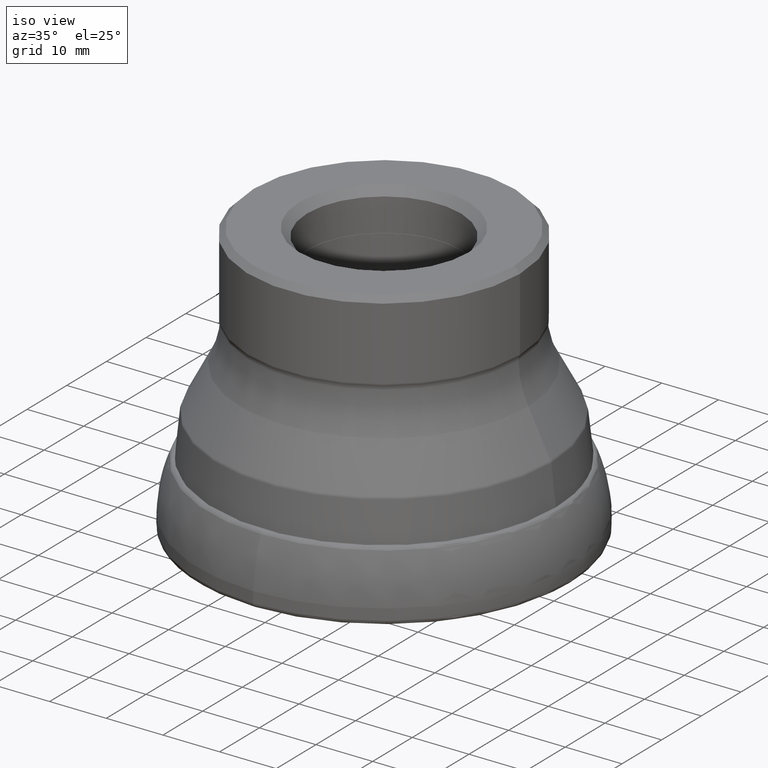
[diagram: clean part render]
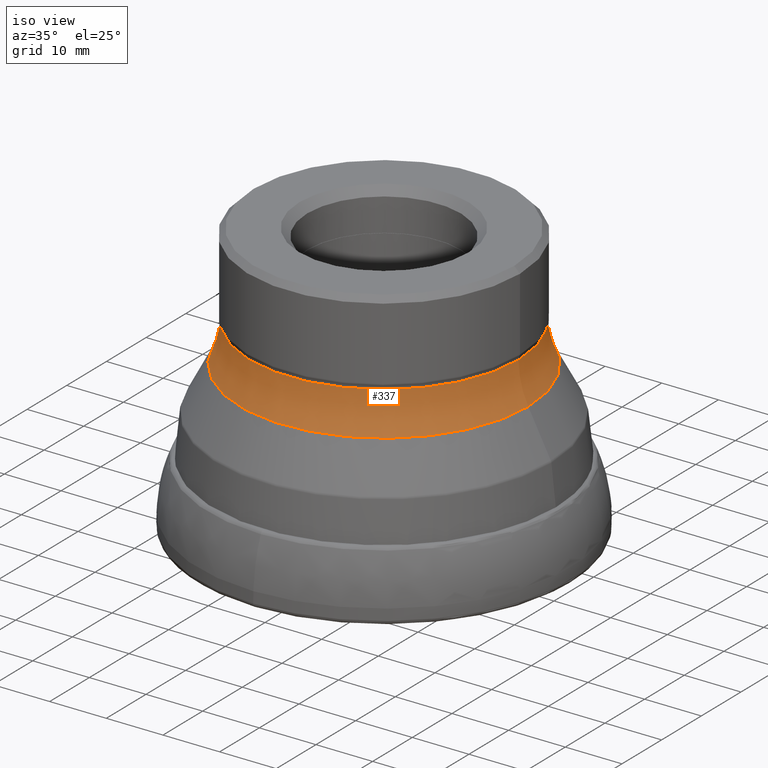
[diagram: same view with one face highlighted and labeled with its STEP entity id]
A machine part, iso view. The second image highlights one B-rep face of the part: STEP entity #337.
In plain terms, the highlighted toroidal blend (fillet) surface has major radius 38.75 mm and minor (blend) radius 15 mm.
Its self-contained STEP definition (entity closure, byte-faithful):
#286 = DIRECTION ( 'NONE',  ( -0.0000000000000000000, -0.0000000000000000000, 1.000000000000000000 ) ) ;
#320 = CARTESIAN_POINT ( 'NONE',  ( 0.0000000000000000000, 0.0000000000000000000, -35.20001158925848700 ) ) ;
#337 = ADVANCED_FACE ( 'NONE', ( #2296, #2919 ), #1118, .F. ) ;
#788 = DIRECTION ( 'NONE',  ( 1.000000000000000000, 0.0000000000000000000, 0.0000000000000000000 ) ) ;
#789 = DIRECTION ( 'NONE',  ( 1.000000000000000000, 0.0000000000000000000, 0.0000000000000000000 ) ) ;
#1118 = TOROIDAL_SURFACE ( 'NONE', #1983, 38.74999999998566800, 14.99999999999311300 ) ;
#1120 = EDGE_LOOP ( 'NONE', ( #2228 ) ) ;
#1313 = EDGE_CURVE ( 'NONE', #2319, #2319, #1425, .T. ) ;
#1425 = CIRCLE ( 'NONE', #2498, 25.47065199734587900 ) ;
#1528 = CARTESIAN_POINT ( 'NONE',  ( 25.47065199734587900, 0.0000000000000000000, -28.22441723287991900 ) ) ;
#1537 = EDGE_LOOP ( 'NONE', ( #2561 ) ) ;
#1546 = DIRECTION ( 'NONE',  ( -0.0000000000000000000, -0.0000000000000000000, 1.000000000000000000 ) ) ;
#1651 = DIRECTION ( 'NONE',  ( 1.000000000000000000, 0.0000000000000000000, 0.0000000000000000000 ) ) ;
#1961 = CIRCLE ( 'NONE', #2962, 23.74999999999255700 ) ;
#1983 = AXIS2_PLACEMENT_3D ( 'NONE', #2704, #1546, #789 ) ;
#2204 = VERTEX_POINT ( 'NONE', #2236 ) ;
#2228 = ORIENTED_EDGE ( 'NONE', *, *, #2597, .T. ) ;
#2236 = CARTESIAN_POINT ( 'NONE',  ( 23.74999999999255700, 0.0000000000000000000, -35.20001158925848700 ) ) ;
#2296 = FACE_OUTER_BOUND ( 'NONE', #1537, .T. ) ;
#2319 = VERTEX_POINT ( 'NONE', #1528 ) ;
#2461 = DIRECTION ( 'NONE',  ( -0.0000000000000000000, -0.0000000000000000000, 1.000000000000000000 ) ) ;
#2477 = CARTESIAN_POINT ( 'NONE',  ( 0.0000000000000000000, 0.0000000000000000000, -28.22441723287991900 ) ) ;
#2498 = AXIS2_PLACEMENT_3D ( 'NONE', #2477, #2461, #788 ) ;
#2561 = ORIENTED_EDGE ( 'NONE', *, *, #1313, .F. ) ;
#2597 = EDGE_CURVE ( 'NONE', #2204, #2204, #1961, .T. ) ;
#2704 = CARTESIAN_POINT ( 'NONE',  ( 0.0000000000000000000, 0.0000000000000000000, -35.20001158926297800 ) ) ;
#2919 = FACE_OUTER_BOUND ( 'NONE', #1120, .T. ) ;
#2962 = AXIS2_PLACEMENT_3D ( 'NONE', #320, #286, #1651 ) ;